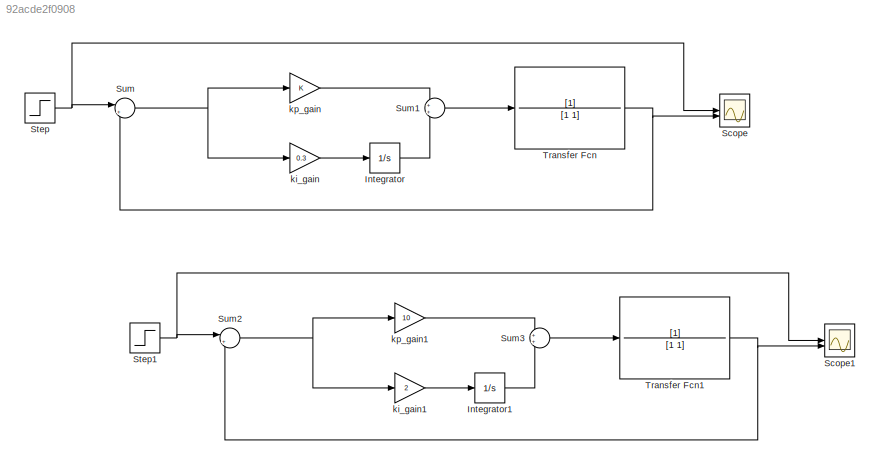
MODEL slx_92acde2f0908
KIND model
CONFIG AbsTol = auto
CONFIG EnableMultiTasking = off
CONFIG FixedStep = auto
CONFIG MaxStep = 1e-3
CONFIG MinStep = auto
CONFIG RelTol = auto
CONFIG SampleTimeConstraint = Unconstrained
CONFIG SolverName = VariableStepAuto
CONFIG StartTime = 0.0
CONFIG StopTime = 50
BLOCK [Integrator] Integrator
BLOCK [Integrator] Integrator1
BLOCK [Scope] Scope
  Floating = off
  NumInputPorts = 2
  ScopeSpecificationString = Simulink.scopes.TimeScopeBlockCfg('CurrentConfiguration', extmgr.ConfigurationSet(extmgr.Configuration('Core','General UI',true),extmgr.Configuration('Core','Source UI',true),extmgr.Configuration('Sources','WiredSimulink',true),extmgr.Configuration('Visuals','Time Domain',true,'SerializedDisplays',{struct('MinYLimReal','-0.125','MaxYLimReal','1.125','YLabelReal','','MinYLimMag','0.00000','MaxYLimM...<+1386ch>
BLOCK [Scope] Scope1
  Floating = off
  NumInputPorts = 2
  ScopeSpecificationString = Simulink.scopes.TimeScopeBlockCfg('CurrentConfiguration', extmgr.ConfigurationSet(extmgr.Configuration('Core','General UI',true),extmgr.Configuration('Core','Source UI',true),extmgr.Configuration('Sources','WiredSimulink',true,'DataLoggingVariableName','ScopeData1'),extmgr.Configuration('Visuals','Time Domain',true,'SerializedDisplays',{struct('MinYLimReal','-0.16562','MaxYLimReal','1.49061','YLab...<+1439ch>
BLOCK [Step] Step
  SampleTime = 0
BLOCK [Step] Step1
  SampleTime = 0
BLOCK [Sum] Sum
  Inputs = |+-
BLOCK [Sum] Sum1
BLOCK [Sum] Sum2
  Inputs = |+-
BLOCK [Sum] Sum3
BLOCK [TransferFcn] Transfer Fcn
BLOCK [TransferFcn] Transfer Fcn1
BLOCK [Gain] ki_gain
  Gain = 0.3
BLOCK [Gain] ki_gain1
  Gain = 2
BLOCK [Gain] kp_gain
BLOCK [Gain] kp_gain1
  Gain = 10
LINE Integrator1:1 -> Sum3:2
LINE Integrator:1 -> Sum1:2
NET Step1:1 -> Scope1:1, Sum2:1
NET Step:1 -> Scope:1, Sum:1
LINE Sum1:1 -> Transfer Fcn:1
NET Sum2:1 -> ki_gain1:1, kp_gain1:1
LINE Sum3:1 -> Transfer Fcn1:1
NET Sum:1 -> ki_gain:1, kp_gain:1
NET Transfer Fcn1:1 -> Scope1:2, Sum2:2
NET Transfer Fcn:1 -> Scope:2, Sum:2
LINE ki_gain1:1 -> Integrator1:1
LINE ki_gain:1 -> Integrator:1
LINE kp_gain1:1 -> Sum3:1
LINE kp_gain:1 -> Sum1:1
note: NET lines group one-source signal fan-out (src -> all destinations, sorted); 1:1 wires keep LINE
